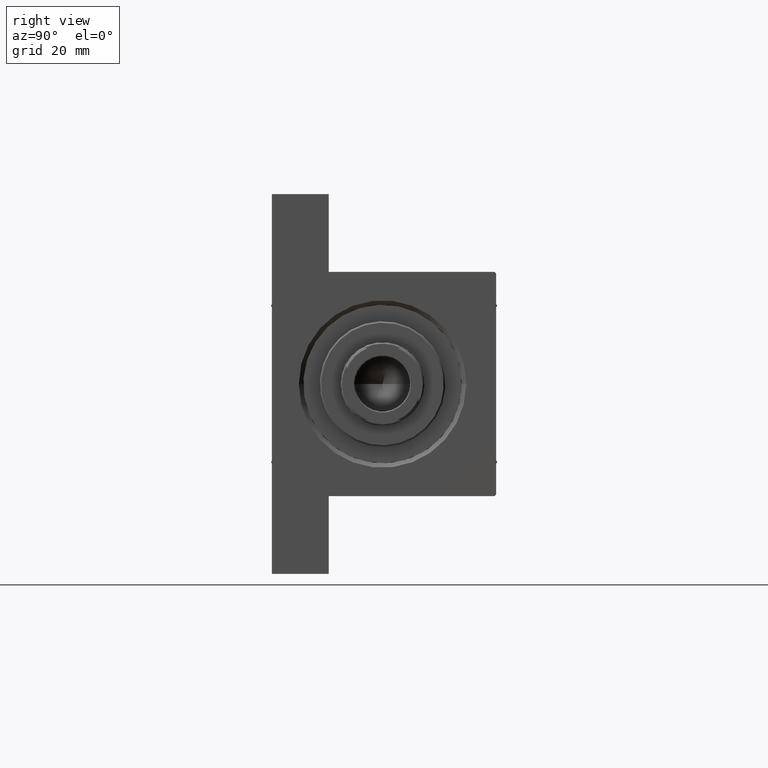
[diagram: clean part render]
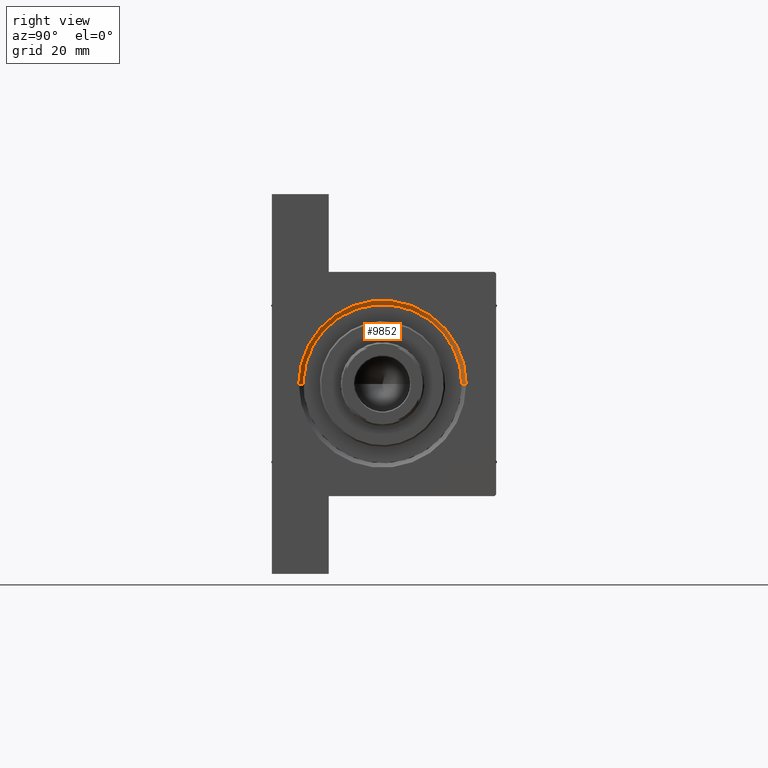
[diagram: same view with one face highlighted and labeled with its STEP entity id]
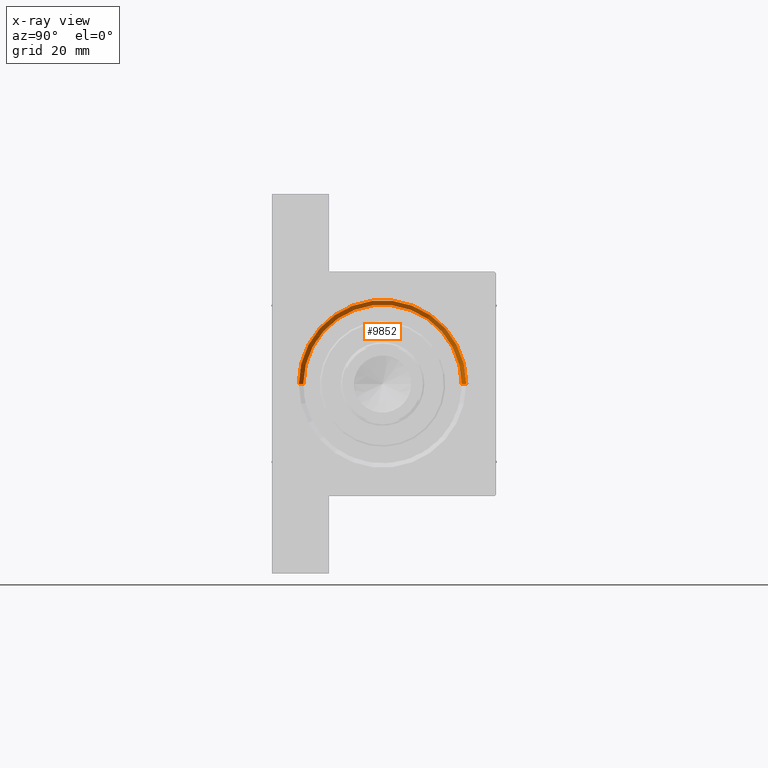
[diagram: x-ray of the same camera — body ghosted, the highlighted face saturated]
A machine part, right view. The second image highlights one B-rep face of the part: STEP entity #9852.
The next image is the same camera in x-ray: the body ghosted, the highlighted face saturated — about 0% of this face is hidden behind the body in this view.
In plain terms, the highlighted conical surface has half-angle 45 deg.
Its self-contained STEP definition (entity closure, byte-faithful):
#102 = CONICAL_SURFACE ( 'NONE', #18546, 26.50000000000000355, 0.7853981633974644883 ) ;
#2772 = DIRECTION ( 'NONE',  ( 0.7071067811865361374, 0.000000000000000000, -0.7071067811865588970 ) ) ;
#2929 = CARTESIAN_POINT ( 'NONE',  ( 152.5000000000000568, 3.245314017740486554E-15, 26.00000000000000355 ) ) ;
#3009 = LINE ( 'NONE', #17684, #29480 ) ;
#3220 = DIRECTION ( 'NONE',  ( 0.7071067811865361374, 8.659560562355073374E-17, 0.7071067811865588970 ) ) ;
#3754 = CARTESIAN_POINT ( 'NONE',  ( 152.5000000000000568, 0.000000000000000000, -27.00000000000000355 ) ) ;
#4518 = ORIENTED_EDGE ( 'NONE', *, *, #30738, .F. ) ;
#5683 = VERTEX_POINT ( 'NONE', #3754 ) ;
#5883 = EDGE_CURVE ( 'NONE', #44503, #34449, #13318, .T. ) ;
#9852 = ADVANCED_FACE ( 'NONE', ( #17798 ), #102, .F. ) ;
#10181 = DIRECTION ( 'NONE',  ( 0.000000000000000000, 0.000000000000000000, 1.000000000000000000 ) ) ;
#10597 = DIRECTION ( 'NONE',  ( 0.000000000000000000, 0.000000000000000000, 1.000000000000000000 ) ) ;
#13318 = LINE ( 'NONE', #21510, #23760 ) ;
#13848 = VERTEX_POINT ( 'NONE', #44364 ) ;
#14392 = CARTESIAN_POINT ( 'NONE',  ( 154.0000000000000000, 3.429011037612588881E-15, 27.49999999999999645 ) ) ;
#16629 = CIRCLE ( 'NONE', #39688, 26.50000000000000355 ) ;
#17684 = CARTESIAN_POINT ( 'NONE',  ( 152.5000000000000568, 0.000000000000000000, -27.00000000000000355 ) ) ;
#17798 = FACE_OUTER_BOUND ( 'NONE', #37998, .T. ) ;
#18274 = DIRECTION ( 'NONE',  ( 0.000000000000000000, 0.000000000000000000, -1.000000000000000000 ) ) ;
#18546 = AXIS2_PLACEMENT_3D ( 'NONE', #39453, #21171, #18274 ) ;
#19340 = EDGE_CURVE ( 'NONE', #5683, #13848, #3009, .T. ) ;
#19669 = CIRCLE ( 'NONE', #46549, 27.99999999999999645 ) ;
#21171 = DIRECTION ( 'NONE',  ( 1.000000000000000000, 0.000000000000000000, 0.000000000000000000 ) ) ;
#21510 = CARTESIAN_POINT ( 'NONE',  ( 152.5000000000000568, 3.245314017740486554E-15, 26.00000000000000355 ) ) ;
#23760 = VECTOR ( 'NONE', #3220, 1000.000000000000114 ) ;
#27995 = DIRECTION ( 'NONE',  ( -1.000000000000000000, -0.000000000000000000, 0.000000000000000000 ) ) ;
#29480 = VECTOR ( 'NONE', #2772, 1000.000000000000114 ) ;
#29851 = CARTESIAN_POINT ( 'NONE',  ( 152.5000000000000568, 0.000000000000000000, -0.5000000000000004441 ) ) ;
#30255 = ORIENTED_EDGE ( 'NONE', *, *, #40477, .F. ) ;
#30738 = EDGE_CURVE ( 'NONE', #44503, #5683, #16629, .T. ) ;
#31922 = ORIENTED_EDGE ( 'NONE', *, *, #19340, .F. ) ;
#34189 = ORIENTED_EDGE ( 'NONE', *, *, #5883, .T. ) ;
#34449 = VERTEX_POINT ( 'NONE', #14392 ) ;
#37998 = EDGE_LOOP ( 'NONE', ( #4518, #34189, #30255, #31922 ) ) ;
#38580 = CARTESIAN_POINT ( 'NONE',  ( 154.0000000000000000, 0.000000000000000000, -0.5000000000000004441 ) ) ;
#39453 = CARTESIAN_POINT ( 'NONE',  ( 152.5000000000000568, 0.000000000000000000, -0.5000000000000004441 ) ) ;
#39688 = AXIS2_PLACEMENT_3D ( 'NONE', #29851, #43572, #10597 ) ;
#40477 = EDGE_CURVE ( 'NONE', #13848, #34449, #19669, .T. ) ;
#43572 = DIRECTION ( 'NONE',  ( 1.000000000000000000, 0.000000000000000000, 0.000000000000000000 ) ) ;
#44364 = CARTESIAN_POINT ( 'NONE',  ( 154.0000000000000000, 0.000000000000000000, -28.49999999999999645 ) ) ;
#44503 = VERTEX_POINT ( 'NONE', #2929 ) ;
#46549 = AXIS2_PLACEMENT_3D ( 'NONE', #38580, #27995, #10181 ) ;